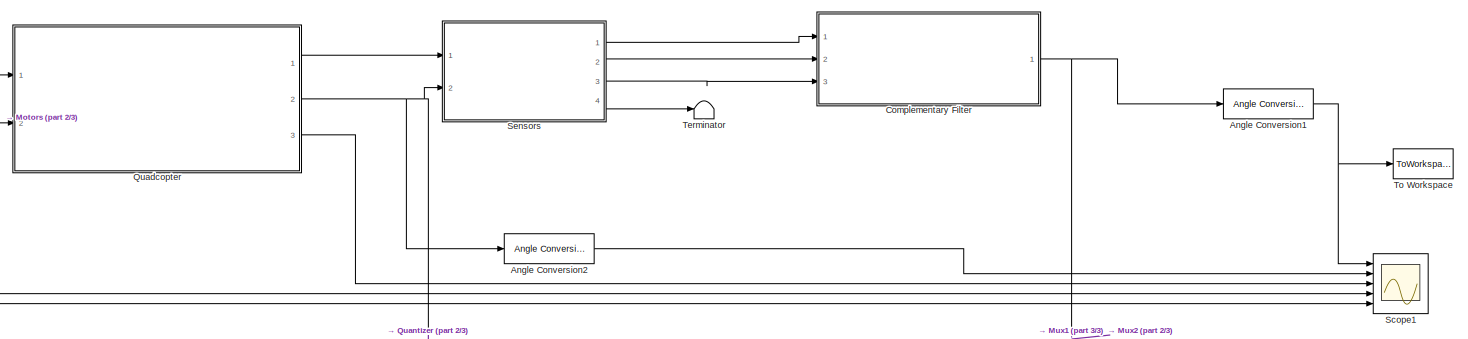
[diagram: root canvas - part 1/3, full width, top band]
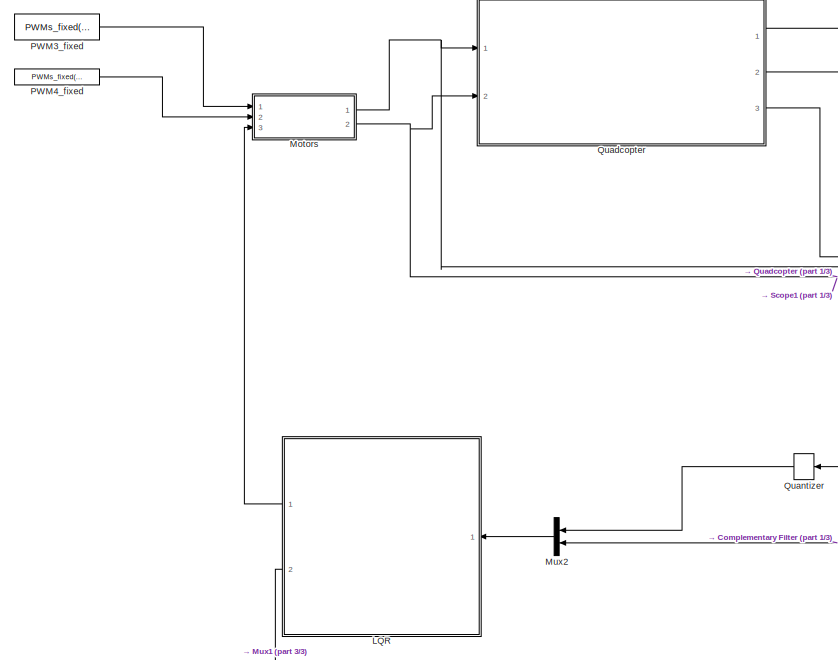
[diagram: root canvas - part 2/3, left side, full height]
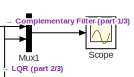
[diagram: root canvas - part 3/3, bottom right region]
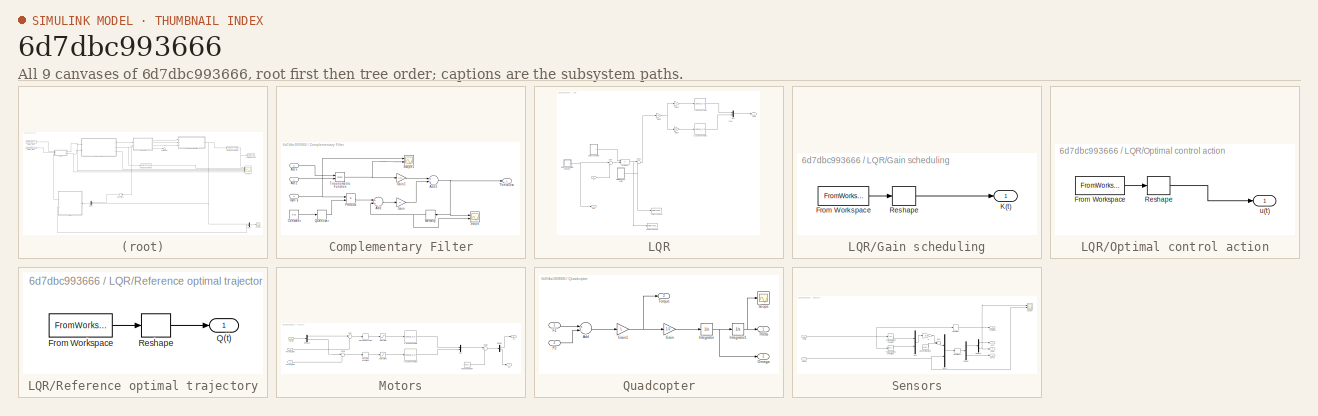
[diagram: thumbnail index - all 9 canvases of the model, root first then tree order]
MODEL slx_6d7dbc993666
KIND model
CONFIG AbsTol = auto
CONFIG EnableMultiTasking = on
CONFIG FixedStep = auto
CONFIG MaxStep = auto
CONFIG MinStep = auto
CONFIG RelTol = 1e-3
CONFIG SampleTimeConstraint = Unconstrained
CONFIG Solver = ode45
CONFIG SolverName = ode45
CONFIG StartTime = 0.0
CONFIG StopTime = tf
BLOCK [Reference] Angle Conversion1  REF=aerolibconvert2/Angle Conversion
  Ports = [1, 1]
  SourceBlock = aerolibconvert2/Angle Conversion
  SourceProductBaseCode = AE
  SourceProductName = Aerospace Blockset
  SourceType = Angle Conversion
BLOCK [Reference] Angle Conversion2  REF=aerolibconvert2/Angle Conversion
  Ports = [1, 1]
  SourceBlock = aerolibconvert2/Angle Conversion
  SourceProductBaseCode = AE
  SourceProductName = Aerospace Blockset
  SourceType = Angle Conversion
BLOCK [SubSystem] Complementary Filter
  Ports = [3, 1]
  RequestExecContextInheritance = off
BLOCK [Inport] Complementary Filter/Acc x 
  IconDisplay = Port number
  Port = 2
BLOCK [Inport] Complementary Filter/Acc z
  IconDisplay = Port number
BLOCK [Sum] Complementary Filter/Add
  InputSameDT = off
  OutDataTypeStr = Inherit: Inherit via internal rule
  Ports = [2, 1]
  SaturateOnIntegerOverflow = off
BLOCK [Sum] Complementary Filter/Add2
  InputSameDT = off
  OutDataTypeStr = Inherit: Inherit via internal rule
  Ports = [2, 1]
  SaturateOnIntegerOverflow = off
BLOCK [Constant] Complementary Filter/Constant
  Value = 0.02
BLOCK [Gain] Complementary Filter/Gain
  Gain = a
  OutDataTypeStr = Inherit: Inherit via internal rule
  ParamDataTypeStr = Inherit: Inherit via internal rule
  SaturateOnIntegerOverflow = off
BLOCK [Gain] Complementary Filter/Gain1
  Gain = 1-a
  OutDataTypeStr = Inherit: Inherit via internal rule
  ParamDataTypeStr = Inherit: Inherit via internal rule
  SaturateOnIntegerOverflow = off
BLOCK [Inport] Complementary Filter/Gyro y
  IconDisplay = Port number
  Port = 3
BLOCK [Memory] Complementary Filter/Memory
  InheritSampleTime = on
  InitialCondition = deg2rad(initial(2))
  LinearizeAsDelay = on
BLOCK [Product] Complementary Filter/Product
  InputSameDT = off
  OutDataTypeStr = Inherit: Inherit via internal rule
  Ports = [2, 1]
  RndMeth = Floor
  SaturateOnIntegerOverflow = off
BLOCK [Quantizer] Complementary Filter/Quantizer
  QuantizationInterval = 0.01
  SampleTime = 0.02
BLOCK [Scope] Complementary Filter/Scope
  Floating = off
  NumInputPorts = 2
  Ports = [2]
  ScopeSpecificationString = C++SS(StrPVP('Location','[5, 198, 1925, 1008]'),StrPVP('Open','off'),StrPVP('ZoomMode','xonly'),MxPVP('AxesTitles',53,'struct(''axes1'',''%<SignalLabel>'',''axes2'',''%<SignalLabel>'')'),MxPVP('ScopeGraphics',56,'struct(''FigureColor'',''[0.5 0.5 0.5]'',''AxesColor'',''[0 0 0]'',''AxesTickColor'',''[1 1 1]'',''LineColors'',''[1 1 0;1 0 1;0 1 1;1 0 0;0 1 0;0 0 1]'',''LineStyles'',''-|-|-|-|-|-'',''...<+324ch>
BLOCK [Scope] Complementary Filter/Scope1
  Floating = off
  NumInputPorts = 2
  Ports = [2]
  ScopeSpecificationString = C++SS(StrPVP('Location','[1, 55, 1921, 1029]'),StrPVP('Open','off'),MxPVP('AxesTitles',53,'struct(''axes1'',''%<SignalLabel>'',''axes2'',''%<SignalLabel>'')'),MxPVP('ScopeGraphics',56,'struct(''FigureColor'',''[0.5 0.5 0.5]'',''AxesColor'',''[0 0 0]'',''AxesTickColor'',''[1 1 1]'',''LineColors'',''[1 1 0;1 0 1;0 1 1;1 0 0;0 1 0;0 0 1]'',''LineStyles'',''-|-|-|-|-|-'',''LineWidths'',''[0.5 0.5 0.5 ...<+296ch>
BLOCK [Outport] Complementary Filter/ThetaDisc
  IconDisplay = Port number
BLOCK [Trigonometry] Complementary Filter/Trigonometric Function
  Operator = atan2
  Ports = [2, 1]
BLOCK [SubSystem] LQR
  Ports = [1, 2]
  RequestExecContextInheritance = off
BLOCK [Lookup_n-D] LQR/1-D Lookup Table
  BreakpointsForDimension1 = [-2,2]
  InternalRulePriority = Speed
  NumberOfTableDimensions = 1
  Ports = [1, 1]
  RndMeth = Simplest
  Table = [-138,138]
BLOCK [Lookup_n-D] LQR/1-D Lookup Table1
  BreakpointsForDimension1 = [-2,2]
  InternalRulePriority = Speed
  NumberOfTableDimensions = 1
  Ports = [1, 1]
  RndMeth = Simplest
  Table = [-150.8,150.8]
BLOCK [SubSystem] LQR/Gain scheduling
  Ports = [0, 1]
  RequestExecContextInheritance = off
BLOCK [FromWorkspace] LQR/Gain scheduling/From Workspace
  SampleTime = 0
  VariableName = [T,K1]
  ZeroCross = on
BLOCK [Outport] LQR/Gain scheduling/K(t)
  IconDisplay = Port number
BLOCK [Reshape] LQR/Gain scheduling/Reshape
  OutputDimensionality = Row vector (2-D)
  Ports = [1, 1]
BLOCK [Gain] LQR/Gain2
  Gain = 1/L
  OutDataTypeStr = Inherit: Inherit via internal rule
  ParamDataTypeStr = Inherit: Inherit via internal rule
  SaturateOnIntegerOverflow = off
BLOCK [Gain] LQR/Gain3
  Gain = b
  OutDataTypeStr = Inherit: Inherit via internal rule
  ParamDataTypeStr = Inherit: Inherit via internal rule
  SaturateOnIntegerOverflow = off
BLOCK [Gain] LQR/Gain4
  Gain = b-1
  OutDataTypeStr = Inherit: Inherit via internal rule
  ParamDataTypeStr = Inherit: Inherit via internal rule
  SaturateOnIntegerOverflow = off
BLOCK [Mux] LQR/Mux
  DisplayOption = bar
  Inputs = 2
  Ports = [2, 1]
BLOCK [SubSystem] LQR/Optimal control action
  Ports = [0, 1]
  RequestExecContextInheritance = off
BLOCK [FromWorkspace] LQR/Optimal control action/From Workspace
  SampleTime = 0
  VariableName = [T uopt]
  ZeroCross = on
BLOCK [Reshape] LQR/Optimal control action/Reshape
  OutputDimensionality = Column vector (2-D)
  Ports = [1, 1]
BLOCK [Outport] LQR/Optimal control action/u(t)
  IconDisplay = Port number
BLOCK [Outport] LQR/PWMs
  IconDisplay = Port number
BLOCK [Product] LQR/Product
  InputSameDT = off
  Multiplication = Matrix(*)
  OutDataTypeStr = Inherit: Inherit via internal rule
  Ports = [2, 1]
  RndMeth = Floor
  SaturateOnIntegerOverflow = off
BLOCK [Outport] LQR/Q(t)
  IconDisplay = Port number
  Port = 2
BLOCK [SubSystem] LQR/Reference optimal trajectory
  Ports = [0, 1]
  RequestExecContextInheritance = off
BLOCK [FromWorkspace] LQR/Reference optimal trajectory/From Workspace
  SampleTime = 0
  VariableName = [T Xref]
  ZeroCross = on
BLOCK [Outport] LQR/Reference optimal trajectory/Q(t)
  IconDisplay = Port number
BLOCK [Reshape] LQR/Reference optimal trajectory/Reshape
  OutputDimensionality = Column vector (2-D)
  Ports = [1, 1]
BLOCK [Sum] LQR/Sum
  IconShape = round
  InputSameDT = off
  Inputs = |+-
  OutDataTypeStr = Inherit: Inherit via internal rule
  Ports = [2, 1]
  SaturateOnIntegerOverflow = off
BLOCK [Sum] LQR/Sum1
  IconShape = round
  InputSameDT = off
  Inputs = |++
  OutDataTypeStr = Inherit: Inherit via internal rule
  Ports = [2, 1]
  SaturateOnIntegerOverflow = off
BLOCK [ToWorkspace] LQR/To Workspace3
  FixptAsFi = on
  MaxDataPoints = inf
  Ports = [1]
  SampleTime = -1
  Save2DSignal = 3-D array (concatenate along third dimension)
  SaveFormat = Timeseries
  VariableName = dU
BLOCK [ToWorkspace] LQR/To Workspace4
  FixptAsFi = on
  MaxDataPoints = inf
  Ports = [1]
  SampleTime = -1
  Save2DSignal = 3-D array (concatenate along third dimension)
  SaveFormat = Timeseries
  VariableName = Uopt
BLOCK [Inport] LQR/X
  IconDisplay = Port number
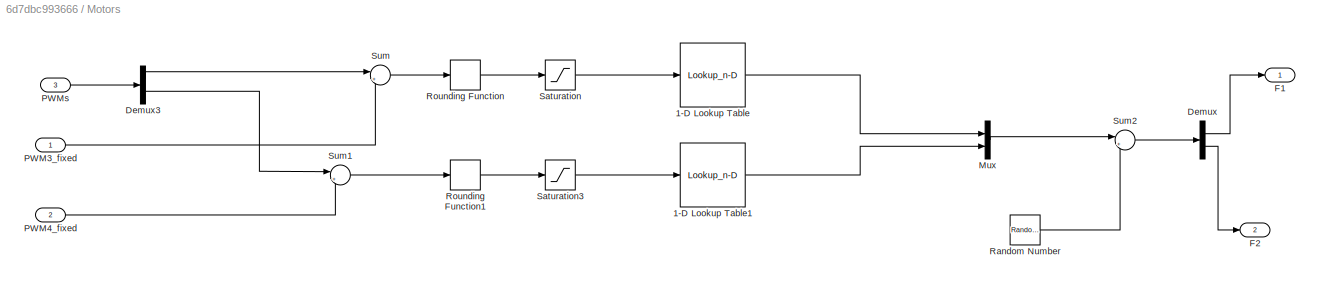
BLOCK [SubSystem] Motors
  Ports = [3, 2]
  RequestExecContextInheritance = off
BLOCK [Lookup_n-D] Motors/1-D Lookup Table
  BreakpointsForDimension1 = [1447,1792]
  InternalRulePriority = Speed
  NumberOfTableDimensions = 1
  Ports = [1, 1]
  RndMeth = Simplest
  Table = [1,5]
BLOCK [Lookup_n-D] Motors/1-D Lookup Table1
  BreakpointsForDimension1 = [1455,1832]
  InternalRulePriority = Speed
  NumberOfTableDimensions = 1
  Ports = [1, 1]
  RndMeth = Simplest
  Table = [1,5]
BLOCK [Demux] Motors/Demux
  DisplayOption = bar
  Outputs = 2
  Ports = [1, 2]
BLOCK [Demux] Motors/Demux3
  DisplayOption = bar
  Outputs = 2
  Ports = [1, 2]
BLOCK [Outport] Motors/F1
  IconDisplay = Port number
BLOCK [Outport] Motors/F2
  IconDisplay = Port number
  Port = 2
BLOCK [Mux] Motors/Mux
  DisplayOption = bar
  Inputs = 2
  Ports = [2, 1]
BLOCK [Inport] Motors/PWM3_fixed
  IconDisplay = Port number
BLOCK [Inport] Motors/PWM4_fixed
  IconDisplay = Port number
  Port = 2
BLOCK [Inport] Motors/PWMs
  IconDisplay = Port number
  Port = 3
BLOCK [RandomNumber] Motors/Random Number
  SampleTime = 0.02
  Variance = 0.036579
BLOCK [Rounding] Motors/Rounding Function
  Operator = round
BLOCK [Rounding] Motors/Rounding Function1
  Operator = round
BLOCK [Saturate] Motors/Saturation
  InputPortMap = u0
  LowerLimit = 1447
  Ports = [1, 1]
  UpperLimit = 1792
BLOCK [Saturate] Motors/Saturation3
  InputPortMap = u0
  LowerLimit = 1455
  Ports = [1, 1]
  UpperLimit = 1832
BLOCK [Sum] Motors/Sum
  IconShape = round
  InputSameDT = off
  Inputs = |++
  OutDataTypeStr = Inherit: Inherit via internal rule
  Ports = [2, 1]
  SaturateOnIntegerOverflow = off
BLOCK [Sum] Motors/Sum1
  IconShape = round
  InputSameDT = off
  Inputs = |++
  OutDataTypeStr = Inherit: Inherit via internal rule
  Ports = [2, 1]
  SaturateOnIntegerOverflow = off
BLOCK [Sum] Motors/Sum2
  IconShape = round
  InputSameDT = off
  Inputs = |++
  OutDataTypeStr = Inherit: Inherit via internal rule
  Ports = [2, 1]
  SaturateOnIntegerOverflow = off
BLOCK [Mux] Mux1
  DisplayOption = bar
  Inputs = 2
  Ports = [2, 1]
BLOCK [Mux] Mux2
  DisplayOption = bar
  Inputs = 2
  Ports = [2, 1]
BLOCK [Constant] PWM3_fixed
  SampleTime = 0.02
  Value = PWMs_fixed(1)
BLOCK [Constant] PWM4_fixed
  SampleTime = 0.02
  Value = PWMs_fixed(2)
BLOCK [SubSystem] Quadcopter
  Ports = [2, 3]
  RequestExecContextInheritance = off
BLOCK [Sum] Quadcopter/Add
  InputSameDT = off
  Inputs = +-
  OutDataTypeStr = Inherit: Inherit via internal rule
  Ports = [2, 1]
  SaturateOnIntegerOverflow = off
BLOCK [Inport] Quadcopter/F1
  IconDisplay = Port number
BLOCK [Inport] Quadcopter/F2
  IconDisplay = Port number
  Port = 2
BLOCK [Gain] Quadcopter/Gain
  Gain = 1/J
  OutDataTypeStr = Inherit: Inherit via internal rule
  ParamDataTypeStr = Inherit: Inherit via internal rule
  SaturateOnIntegerOverflow = off
BLOCK [Gain] Quadcopter/Gain1
  Gain = L
  OutDataTypeStr = Inherit: Inherit via internal rule
  ParamDataTypeStr = Inherit: Inherit via internal rule
  SaturateOnIntegerOverflow = off
BLOCK [Integrator] Quadcopter/Integrator
  InitialCondition = deg2rad(initial(1))
  Ports = [1, 1]
BLOCK [Integrator] Quadcopter/Integrator1
  InitialCondition = deg2rad(initial(2))
  Ports = [1, 1]
BLOCK [Outport] Quadcopter/Omega
  IconDisplay = Port number
  Port = 2
BLOCK [Scope] Quadcopter/Scope
  Floating = off
  NumInputPorts = 1
  Ports = [1]
  ScopeSpecificationString = C++SS(StrPVP('Location','[7, 138, 1927, 1112]'),StrPVP('Open','off'),MxPVP('AxesTitles',53,'struct(''axes1'',''%<SignalLabel>'')'),MxPVP('ScopeGraphics',56,'struct(''FigureColor'',''[0.5 0.5 0.5]'',''AxesColor'',''[0 0 0]'',''AxesTickColor'',''[1 1 1]'',''LineColors'',''[1 1 0;1 0 1;0 1 1;1 0 0;0 1 0;0 0 1]'',''LineStyles'',''-|-|-|-|-|-'',''LineWidths'',''[0.5 0.5 0.5 0.5 0.5 0.5]'',''MarkerStyle...<+224ch>
BLOCK [Outport] Quadcopter/Theta
  IconDisplay = Port number
BLOCK [Outport] Quadcopter/Torque 
  IconDisplay = Port number
  Port = 3
BLOCK [Quantizer] Quantizer
  QuantizationInterval = 0.01
  SampleTime = 0.02
BLOCK [Scope] Scope
  Floating = off
  NumInputPorts = 1
  Ports = [1]
  ScopeSpecificationString = Simulink.scopes.TimeScopeBlockCfg('CurrentConfiguration', extmgr.ConfigurationSet(extmgr.Configuration('Core','General UI',true),extmgr.Configuration('Core','Source UI',true),extmgr.Configuration('Sources','WiredSimulink',true,'DataLoggingVariableName','ScopeData2'),extmgr.Configuration('Visuals','Time Domain',true,'SerializedDisplays',{struct('MinYLimReal','-0.17015','MaxYLimReal','0.22239','YLab...<+1429ch>
BLOCK [Scope] Scope1
  Floating = off
  NumInputPorts = 5
  Ports = [5]
  ScopeSpecificationString = Simulink.scopes.TimeScopeBlockCfg('CurrentConfiguration', extmgr.ConfigurationSet(extmgr.Configuration('Core','General UI',true),extmgr.Configuration('Core','Source UI',true),extmgr.Configuration('Sources','WiredSimulink',true,'DataLoggingVariableName','ScopeData1','DataLoggingLimitDataPoints',true,'DataLoggingSaveFormat','Array','DataLoggingDecimation','1','DataLoggingDecimateData',true),extmgr.C...<+4793ch>
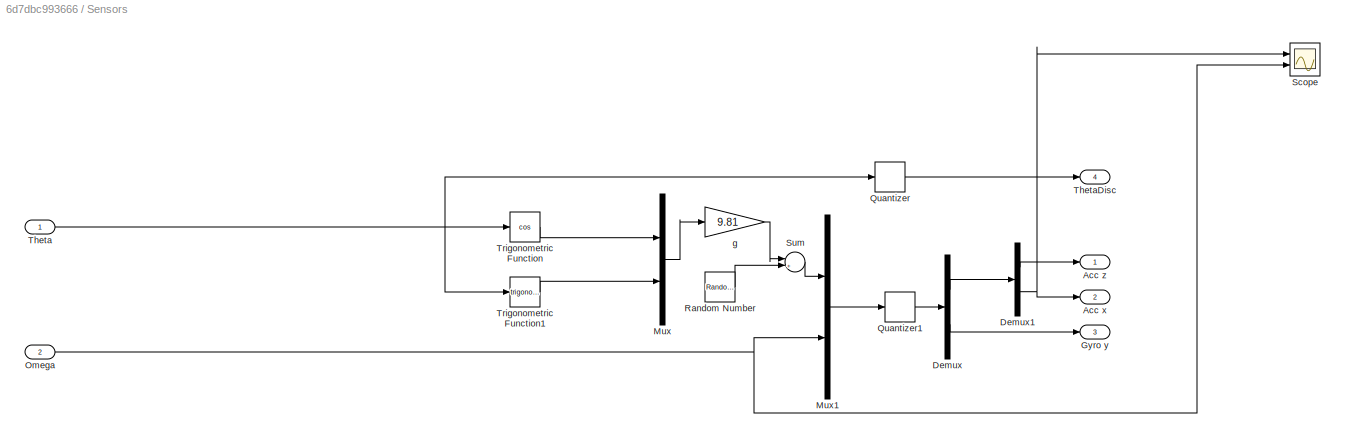
BLOCK [SubSystem] Sensors
  Ports = [2, 4]
  RequestExecContextInheritance = off
BLOCK [Outport] Sensors/Acc x
  IconDisplay = Port number
  Port = 2
BLOCK [Outport] Sensors/Acc z
  IconDisplay = Port number
BLOCK [Demux] Sensors/Demux
  DisplayOption = bar
  Outputs = 2
  Ports = [1, 2]
BLOCK [Demux] Sensors/Demux1
  DisplayOption = bar
  Outputs = 2
  Ports = [1, 2]
BLOCK [Outport] Sensors/Gyro y
  IconDisplay = Port number
  Port = 3
BLOCK [Mux] Sensors/Mux
  DisplayOption = bar
  Inputs = 2
  Ports = [2, 1]
BLOCK [Mux] Sensors/Mux1
  DisplayOption = bar
  Inputs = 2
  Ports = [2, 1]
BLOCK [Inport] Sensors/Omega
  IconDisplay = Port number
  Port = 2
BLOCK [Quantizer] Sensors/Quantizer
  QuantizationInterval = 0.01
  SampleTime = 0.02
BLOCK [Quantizer] Sensors/Quantizer1
  QuantizationInterval = 0.01
  SampleTime = 0.02
BLOCK [RandomNumber] Sensors/Random Number
  SampleTime = 0
  Variance = 0.0127
BLOCK [Scope] Sensors/Scope
  Floating = off
  NumInputPorts = 2
  Ports = [2]
  ScopeSpecificationString = C++SS(StrPVP('Location','[-82, 104, 1838, 914]'),StrPVP('Open','off'),MxPVP('AxesTitles',53,'struct(''axes1'',''%<SignalLabel>'',''axes2'',''%<SignalLabel>'')'),MxPVP('ScopeGraphics',56,'struct(''FigureColor'',''[0.5 0.5 0.5]'',''AxesColor'',''[0 0 0]'',''AxesTickColor'',''[1 1 1]'',''LineColors'',''[1 1 0;1 0 1;0 1 1;1 0 0;0 1 0;0 0 1]'',''LineStyles'',''-|-|-|-|-|-'',''LineWidths'',''[0.5 0.5 0....<+298ch>
BLOCK [Sum] Sensors/Sum
  IconShape = round
  InputSameDT = off
  Inputs = |++
  OutDataTypeStr = Inherit: Inherit via internal rule
  Ports = [2, 1]
  SaturateOnIntegerOverflow = off
BLOCK [Inport] Sensors/Theta
  IconDisplay = Port number
BLOCK [Outport] Sensors/ThetaDisc
  IconDisplay = Port number
  Port = 4
BLOCK [Trigonometry] Sensors/Trigonometric Function
  Operator = cos
  Ports = [1, 1]
BLOCK [Trigonometry] Sensors/Trigonometric Function1
  Ports = [1, 1]
BLOCK [Gain] Sensors/g
  Gain = 9.81
  OutDataTypeStr = Inherit: Inherit via internal rule
  ParamDataTypeStr = Inherit: Inherit via internal rule
  SaturateOnIntegerOverflow = off
BLOCK [Terminator] Terminator
BLOCK [ToWorkspace] To Workspace
  FixptAsFi = on
  MaxDataPoints = inf
  Ports = [1]
  SampleTime = -1
  Save2DSignal = 3-D array (concatenate along third dimension)
  SaveFormat = Timeseries
  VariableName = theta
ANNOTATION LQR: PWM4
NET Angle Conversion1:1 -> Scope1:1, To Workspace:1
LINE Angle Conversion2:1 -> Scope1:2
LINE Complementary Filter/Acc x :1 -> Complementary Filter/Trigonometric Function:1
LINE Complementary Filter/Acc z:1 -> Complementary Filter/Trigonometric Function:2
NET Complementary Filter/Add2:1 -> Complementary Filter/Memory:1, Complementary Filter/Scope:1, Complementary Filter/ThetaDisc:1
LINE Complementary Filter/Add:1 -> Complementary Filter/Gain:1
LINE Complementary Filter/Constant:1 -> Complementary Filter/Quantizer:1
LINE Complementary Filter/Gain1:1 -> Complementary Filter/Add2:1
LINE Complementary Filter/Gain:1 -> Complementary Filter/Add2:2
NET Complementary Filter/Gyro y:1 -> Complementary Filter/Product:1, Complementary Filter/Scope1:1
NET Complementary Filter/Memory:1 -> Complementary Filter/Add:2, Complementary Filter/Scope:2
LINE Complementary Filter/Product:1 -> Complementary Filter/Add:1
LINE Complementary Filter/Quantizer:1 -> Complementary Filter/Product:2
NET Complementary Filter/Trigonometric Function:1 -> Complementary Filter/Gain1:1, Complementary Filter/Scope1:2
NET Complementary Filter:1 -> Angle Conversion1:1, Mux1:1, Mux2:2
LINE LQR/1-D Lookup Table1:1 -> LQR/Mux:2
LINE LQR/1-D Lookup Table:1 -> LQR/Mux:1
LINE LQR/Gain scheduling/From Workspace:1 -> LQR/Gain scheduling/Reshape:1
LINE LQR/Gain scheduling/Reshape:1 -> LQR/Gain scheduling/K(t):1
LINE LQR/Gain scheduling:1 -> LQR/Product:1
NET LQR/Gain2:1 -> LQR/Gain3:1, LQR/Gain4:1
LINE LQR/Gain3:1 -> LQR/1-D Lookup Table:1
LINE LQR/Gain4:1 -> LQR/1-D Lookup Table1:1
LINE LQR/Mux:1 -> LQR/PWMs:1
LINE LQR/Optimal control action/From Workspace:1 -> LQR/Optimal control action/Reshape:1
LINE LQR/Optimal control action/Reshape:1 -> LQR/Optimal control action/u(t):1
NET LQR/Optimal control action:1 -> LQR/Sum1:2, LQR/To Workspace4:1
NET LQR/Product:1 -> LQR/Sum1:1, LQR/To Workspace3:1
LINE LQR/Reference optimal trajectory/From Workspace:1 -> LQR/Reference optimal trajectory/Reshape:1
LINE LQR/Reference optimal trajectory/Reshape:1 -> LQR/Reference optimal trajectory/Q(t):1
NET LQR/Reference optimal trajectory:1 -> LQR/Q(t):1, LQR/Sum:1
LINE LQR/Sum1:1 -> LQR/Gain2:1
LINE LQR/Sum:1 -> LQR/Product:2
LINE LQR/X:1 -> LQR/Sum:2
LINE LQR:1 -> Motors:3
LINE LQR:2 -> Mux1:2
LINE Motors/1-D Lookup Table1:1 -> Motors/Mux:2
LINE Motors/1-D Lookup Table:1 -> Motors/Mux:1
LINE Motors/Demux3:1 -> Motors/Sum:1
LINE Motors/Demux3:2 -> Motors/Sum1:1
LINE Motors/Demux:1 -> Motors/F1:1
LINE Motors/Demux:2 -> Motors/F2:1
LINE Motors/Mux:1 -> Motors/Sum2:1
LINE Motors/PWM3_fixed:1 -> Motors/Sum:2
LINE Motors/PWM4_fixed:1 -> Motors/Sum1:2
LINE Motors/PWMs:1 -> Motors/Demux3:1
LINE Motors/Random Number:1 -> Motors/Sum2:2
LINE Motors/Rounding Function1:1 -> Motors/Saturation3:1
LINE Motors/Rounding Function:1 -> Motors/Saturation:1
LINE Motors/Saturation3:1 -> Motors/1-D Lookup Table1:1
LINE Motors/Saturation:1 -> Motors/1-D Lookup Table:1
LINE Motors/Sum1:1 -> Motors/Rounding Function1:1
LINE Motors/Sum2:1 -> Motors/Demux:1
LINE Motors/Sum:1 -> Motors/Rounding Function:1
NET Motors:1 -> Quadcopter:1, Scope1:4
NET Motors:2 -> Quadcopter:2, Scope1:5
LINE Mux1:1 -> Scope:1
LINE Mux2:1 -> LQR:1
LINE PWM3_fixed:1 -> Motors:1
LINE PWM4_fixed:1 -> Motors:2
LINE Quadcopter/Add:1 -> Quadcopter/Gain1:1
LINE Quadcopter/F1:1 -> Quadcopter/Add:1
LINE Quadcopter/F2:1 -> Quadcopter/Add:2
NET Quadcopter/Gain1:1 -> Quadcopter/Gain:1, Quadcopter/Torque :1
LINE Quadcopter/Gain:1 -> Quadcopter/Integrator:1
NET Quadcopter/Integrator1:1 -> Quadcopter/Scope:1, Quadcopter/Theta:1
NET Quadcopter/Integrator:1 -> Quadcopter/Integrator1:1, Quadcopter/Omega:1
LINE Quadcopter:1 -> Sensors:1
NET Quadcopter:2 -> Angle Conversion2:1, Quantizer:1, Sensors:2
LINE Quadcopter:3 -> Scope1:3
LINE Quantizer:1 -> Mux2:1
LINE Sensors/Demux1:1 -> Sensors/Acc z:1
NET Sensors/Demux1:2 -> Sensors/Acc x:1, Sensors/Scope:1
LINE Sensors/Demux:1 -> Sensors/Demux1:1
LINE Sensors/Demux:2 -> Sensors/Gyro y:1
LINE Sensors/Mux1:1 -> Sensors/Quantizer1:1
LINE Sensors/Mux:1 -> Sensors/g:1
NET Sensors/Omega:1 -> Sensors/Mux1:2, Sensors/Scope:2
LINE Sensors/Quantizer1:1 -> Sensors/Demux:1
LINE Sensors/Quantizer:1 -> Sensors/ThetaDisc:1
LINE Sensors/Random Number:1 -> Sensors/Sum:2
LINE Sensors/Sum:1 -> Sensors/Mux1:1
NET Sensors/Theta:1 -> Sensors/Quantizer:1, Sensors/Trigonometric Function1:1, Sensors/Trigonometric Function:1
LINE Sensors/Trigonometric Function1:1 -> Sensors/Mux:2
LINE Sensors/Trigonometric Function:1 -> Sensors/Mux:1
LINE Sensors/g:1 -> Sensors/Sum:1
LINE Sensors:1 -> Complementary Filter:1
LINE Sensors:2 -> Complementary Filter:2
LINE Sensors:3 -> Complementary Filter:3
LINE Sensors:4 -> Terminator:1
note: NET lines group one-source signal fan-out (src -> all destinations, sorted); 1:1 wires keep LINE
